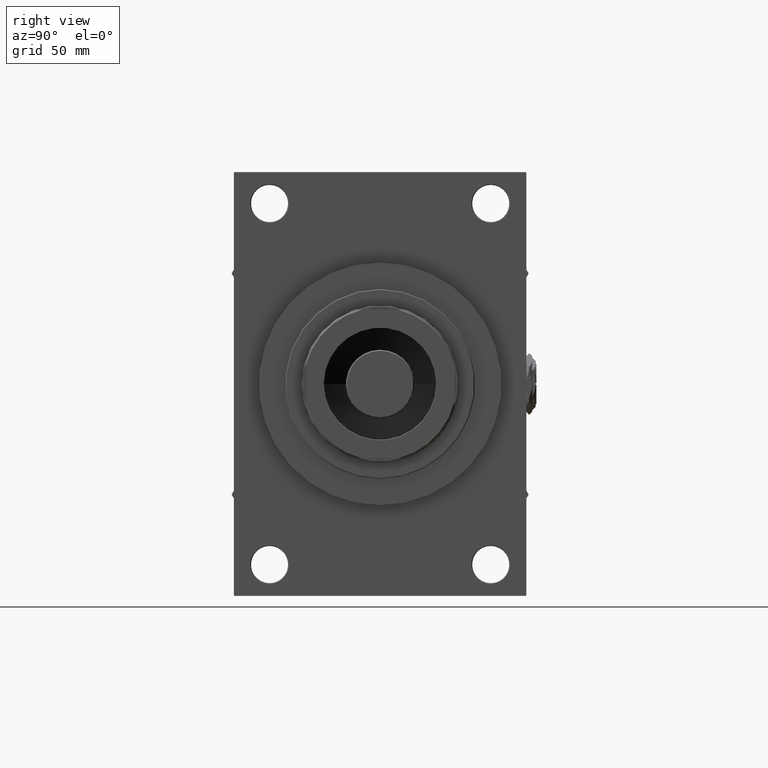
[diagram: clean part render]
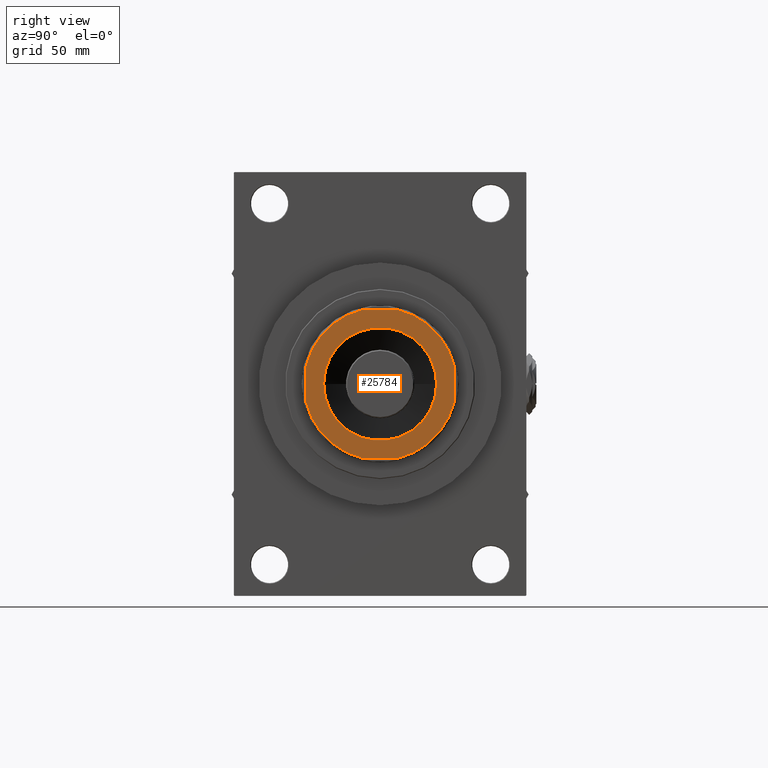
[diagram: same view with one face highlighted and labeled with its STEP entity id]
A machine part, right view. The second image highlights one B-rep face of the part: STEP entity #25784.
In plain terms, the highlighted planar face has unit normal (1, 0, 0).
Its self-contained STEP definition (entity closure, byte-faithful):
#40 = LINE ( 'NONE', #296, #30726 ) ;
#168 = FACE_OUTER_BOUND ( 'NONE', #35218, .T. ) ;
#296 = CARTESIAN_POINT ( 'NONE',  ( -51.99999999999999289, 52.00000000000001421, 205.0000000000000000 ) ) ;
#441 = CARTESIAN_POINT ( 'NONE',  ( 52.00000000000001421, 12.57974562540872654, 205.0000000000000000 ) ) ;
#713 = VECTOR ( 'NONE', #23903, 1000.000000000000000 ) ;
#1203 = DIRECTION ( 'NONE',  ( -1.000000000000000000, -0.000000000000000000, -0.000000000000000000 ) ) ;
#2055 = DIRECTION ( 'NONE',  ( -0.000000000000000000, 0.000000000000000000, 1.000000000000000000 ) ) ;
#3322 = ORIENTED_EDGE ( 'NONE', *, *, #42851, .T. ) ;
#3706 = CIRCLE ( 'NONE', #32183, 53.49999999999987921 ) ;
#3973 = FACE_BOUND ( 'NONE', #25563, .T. ) ;
#4007 = VERTEX_POINT ( 'NONE', #441 ) ;
#4545 = CARTESIAN_POINT ( 'NONE',  ( -51.99999999999997868, -51.99999999999999289, 205.0000000000000000 ) ) ;
#5010 = CARTESIAN_POINT ( 'NONE',  ( -51.99999999999999289, 52.00000000000001421, 205.0000000000000000 ) ) ;
#5372 = VERTEX_POINT ( 'NONE', #12616 ) ;
#5695 = VERTEX_POINT ( 'NONE', #46919 ) ;
#6522 = VECTOR ( 'NONE', #1203, 1000.000000000000000 ) ;
#6626 = CARTESIAN_POINT ( 'NONE',  ( 0.000000000000000000, 0.000000000000000000, 205.0000000000000000 ) ) ;
#7036 = CARTESIAN_POINT ( 'NONE',  ( -51.99999999999998579, -12.57974562540868213, 205.0000000000000000 ) ) ;
#7047 = VECTOR ( 'NONE', #18606, 1000.000000000000000 ) ;
#7200 = DIRECTION ( 'NONE',  ( 1.000000000000000000, 0.000000000000000000, 0.000000000000000000 ) ) ;
#7419 = DIRECTION ( 'NONE',  ( 1.334402673828313093E-16, -1.000000000000000000, 0.000000000000000000 ) ) ;
#8458 = ORIENTED_EDGE ( 'NONE', *, *, #11420, .T. ) ;
#8864 = DIRECTION ( 'NONE',  ( -0.000000000000000000, 0.000000000000000000, 1.000000000000000000 ) ) ;
#8890 = EDGE_CURVE ( 'NONE', #4007, #5695, #39610, .T. ) ;
#9485 = DIRECTION ( 'NONE',  ( -0.000000000000000000, 0.000000000000000000, 1.000000000000000000 ) ) ;
#9770 = EDGE_CURVE ( 'NONE', #49642, #44043, #50236, .T. ) ;
#11375 = CARTESIAN_POINT ( 'NONE',  ( 0.000000000000000000, 0.000000000000000000, 205.0000000000000000 ) ) ;
#11420 = EDGE_CURVE ( 'NONE', #5372, #4007, #42025, .T. ) ;
#12230 = VERTEX_POINT ( 'NONE', #7036 ) ;
#12543 = ORIENTED_EDGE ( 'NONE', *, *, #42653, .T. ) ;
#12616 = CARTESIAN_POINT ( 'NONE',  ( 52.00000000000001421, -12.57974562540856844, 205.0000000000000000 ) ) ;
#13185 = CARTESIAN_POINT ( 'NONE',  ( 0.000000000000000000, 0.000000000000000000, 205.0000000000000000 ) ) ;
#16924 = CIRCLE ( 'NONE', #20984, 53.49999999999995737 ) ;
#16986 = DIRECTION ( 'NONE',  ( 0.000000000000000000, -0.000000000000000000, -1.000000000000000000 ) ) ;
#18174 = ORIENTED_EDGE ( 'NONE', *, *, #50171, .T. ) ;
#18522 = AXIS2_PLACEMENT_3D ( 'NONE', #36331, #16986, #28684 ) ;
#18606 = DIRECTION ( 'NONE',  ( -0.000000000000000000, 1.000000000000000000, -0.000000000000000000 ) ) ;
#19188 = VERTEX_POINT ( 'NONE', #30369 ) ;
#19488 = PLANE ( 'NONE',  #48928 ) ;
#19757 = DIRECTION ( 'NONE',  ( 0.000000000000000000, -0.000000000000000000, -1.000000000000000000 ) ) ;
#20260 = CARTESIAN_POINT ( 'NONE',  ( 0.000000000000000000, 0.000000000000000000, 205.0000000000000000 ) ) ;
#20968 = ORIENTED_EDGE ( 'NONE', *, *, #34097, .T. ) ;
#20984 = AXIS2_PLACEMENT_3D ( 'NONE', #36511, #26541, #7200 ) ;
#21090 = CARTESIAN_POINT ( 'NONE',  ( 39.54999999999997584, 0.000000000000000000, 205.0000000000000000 ) ) ;
#21183 = DIRECTION ( 'NONE',  ( 1.000000000000000000, 0.000000000000000000, 0.000000000000000000 ) ) ;
#22615 = ORIENTED_EDGE ( 'NONE', *, *, #8890, .T. ) ;
#23116 = CIRCLE ( 'NONE', #27188, 39.54999999999997584 ) ;
#23903 = DIRECTION ( 'NONE',  ( 1.000000000000000000, 0.000000000000000000, 0.000000000000000000 ) ) ;
#25480 = DIRECTION ( 'NONE',  ( 1.000000000000000000, 0.000000000000000000, 0.000000000000000000 ) ) ;
#25563 = EDGE_LOOP ( 'NONE', ( #20968, #38070 ) ) ;
#25784 = ADVANCED_FACE ( 'NONE', ( #3973, #168 ), #19488, .T. ) ;
#26541 = DIRECTION ( 'NONE',  ( -0.000000000000000000, 0.000000000000000000, 1.000000000000000000 ) ) ;
#26655 = DIRECTION ( 'NONE',  ( 1.000000000000000000, 0.000000000000000000, 0.000000000000000000 ) ) ;
#27188 = AXIS2_PLACEMENT_3D ( 'NONE', #11375, #19757, #26655 ) ;
#28327 = AXIS2_PLACEMENT_3D ( 'NONE', #6626, #2055, #25480 ) ;
#28684 = DIRECTION ( 'NONE',  ( 1.000000000000000000, 0.000000000000000000, 0.000000000000000000 ) ) ;
#30369 = CARTESIAN_POINT ( 'NONE',  ( 12.57974562540865726, -51.99999999999999289, 205.0000000000000000 ) ) ;
#30726 = VECTOR ( 'NONE', #7419, 1000.000000000000000 ) ;
#31000 = VERTEX_POINT ( 'NONE', #41431 ) ;
#31197 = DIRECTION ( 'NONE',  ( -0.000000000000000000, 0.000000000000000000, 1.000000000000000000 ) ) ;
#31342 = CARTESIAN_POINT ( 'NONE',  ( -12.57974562540865904, -51.99999999999999289, 205.0000000000000000 ) ) ;
#31524 = LINE ( 'NONE', #4545, #713 ) ;
#32183 = AXIS2_PLACEMENT_3D ( 'NONE', #48195, #9485, #21183 ) ;
#32445 = ORIENTED_EDGE ( 'NONE', *, *, #43108, .T. ) ;
#32481 = VERTEX_POINT ( 'NONE', #33661 ) ;
#33661 = CARTESIAN_POINT ( 'NONE',  ( -51.99999999999998579, 12.57974562540899832, 205.0000000000000000 ) ) ;
#34097 = EDGE_CURVE ( 'NONE', #44043, #49642, #23116, .T. ) ;
#35030 = DIRECTION ( 'NONE',  ( 1.000000000000000000, 0.000000000000000000, 0.000000000000000000 ) ) ;
#35218 = EDGE_LOOP ( 'NONE', ( #8458, #22615, #18174, #37292, #12543, #3322, #32445, #44165 ) ) ;
#36331 = CARTESIAN_POINT ( 'NONE',  ( 0.000000000000000000, 0.000000000000000000, 205.0000000000000000 ) ) ;
#36511 = CARTESIAN_POINT ( 'NONE',  ( 0.000000000000000000, 0.000000000000000000, 205.0000000000000000 ) ) ;
#36554 = EDGE_CURVE ( 'NONE', #19188, #5372, #3706, .T. ) ;
#37292 = ORIENTED_EDGE ( 'NONE', *, *, #41960, .T. ) ;
#37723 = CARTESIAN_POINT ( 'NONE',  ( 52.00000000000001421, 52.00000000000001421, 205.0000000000000000 ) ) ;
#37981 = AXIS2_PLACEMENT_3D ( 'NONE', #13185, #8864, #47820 ) ;
#38070 = ORIENTED_EDGE ( 'NONE', *, *, #9770, .T. ) ;
#39610 = CIRCLE ( 'NONE', #37981, 53.49999999999991473 ) ;
#39888 = LINE ( 'NONE', #5010, #6522 ) ;
#41431 = CARTESIAN_POINT ( 'NONE',  ( -12.57974562540890062, 52.00000000000001421, 205.0000000000000000 ) ) ;
#41960 = EDGE_CURVE ( 'NONE', #31000, #32481, #16924, .T. ) ;
#42025 = LINE ( 'NONE', #37723, #7047 ) ;
#42653 = EDGE_CURVE ( 'NONE', #32481, #12230, #40, .T. ) ;
#42851 = EDGE_CURVE ( 'NONE', #12230, #49574, #45412, .T. ) ;
#43108 = EDGE_CURVE ( 'NONE', #49574, #19188, #31524, .T. ) ;
#44043 = VERTEX_POINT ( 'NONE', #21090 ) ;
#44088 = CARTESIAN_POINT ( 'NONE',  ( -39.54999999999997584, 4.843478090627778580E-15, 205.0000000000000000 ) ) ;
#44165 = ORIENTED_EDGE ( 'NONE', *, *, #36554, .T. ) ;
#45412 = CIRCLE ( 'NONE', #28327, 53.49999999999987921 ) ;
#46919 = CARTESIAN_POINT ( 'NONE',  ( 12.57974562540872832, 52.00000000000001421, 205.0000000000000000 ) ) ;
#47820 = DIRECTION ( 'NONE',  ( 1.000000000000000000, 0.000000000000000000, 0.000000000000000000 ) ) ;
#48195 = CARTESIAN_POINT ( 'NONE',  ( 0.000000000000000000, 0.000000000000000000, 205.0000000000000000 ) ) ;
#48928 = AXIS2_PLACEMENT_3D ( 'NONE', #20260, #31197, #35030 ) ;
#49574 = VERTEX_POINT ( 'NONE', #31342 ) ;
#49642 = VERTEX_POINT ( 'NONE', #44088 ) ;
#50171 = EDGE_CURVE ( 'NONE', #5695, #31000, #39888, .T. ) ;
#50236 = CIRCLE ( 'NONE', #18522, 39.54999999999997584 ) ;